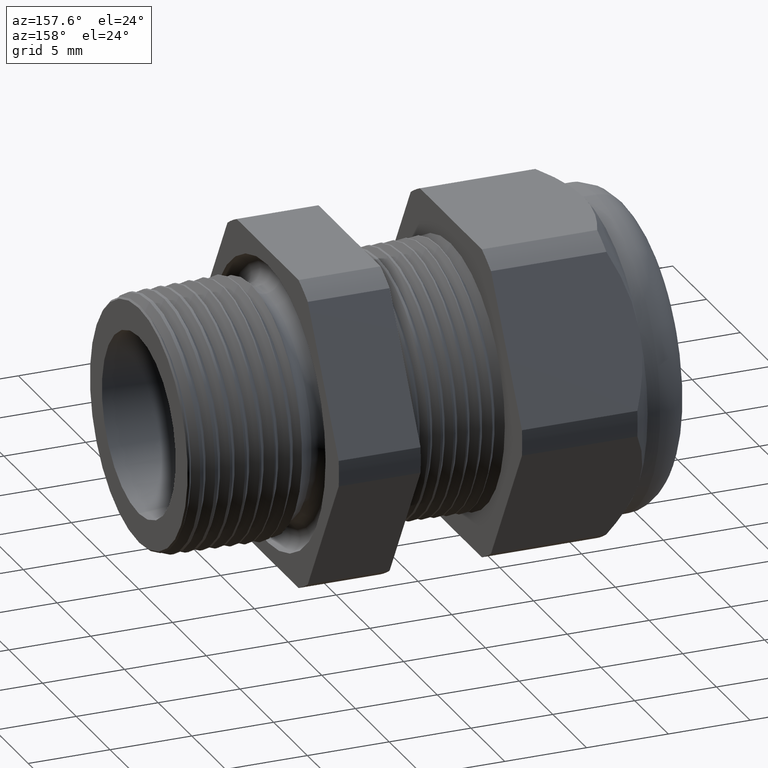
[diagram: clean part render]
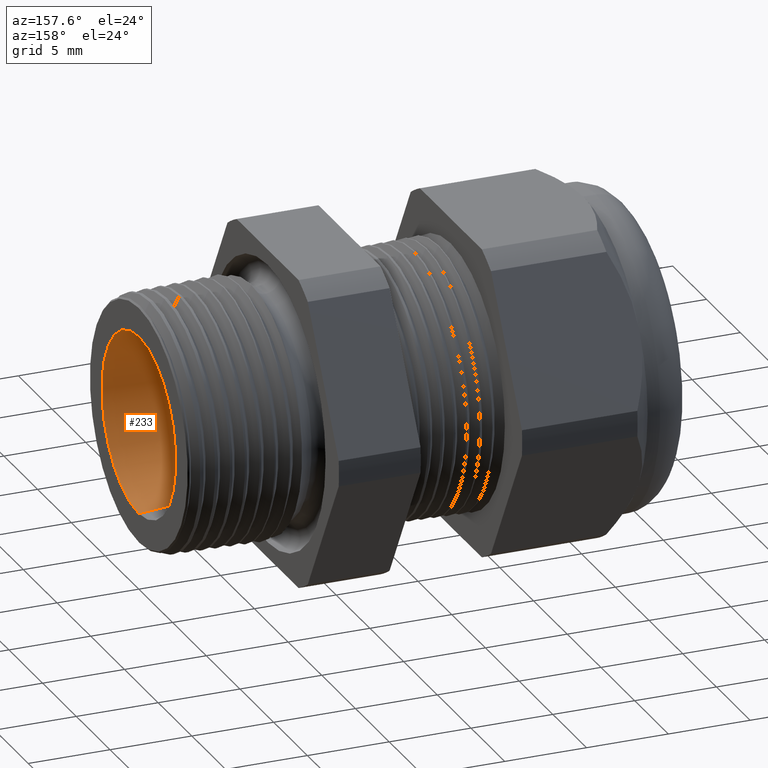
[diagram: same view with one face highlighted and labeled with its STEP entity id]
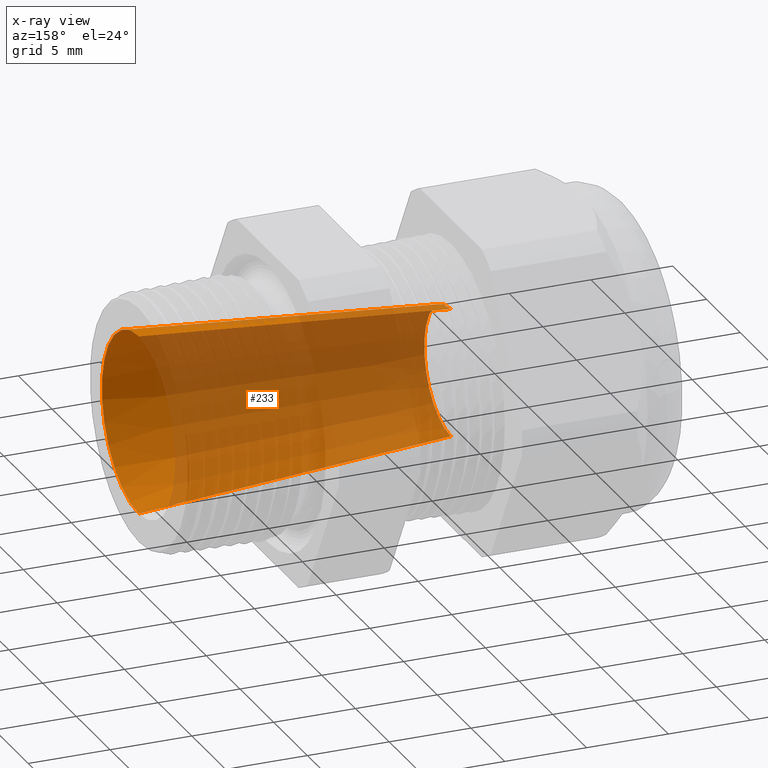
[diagram: x-ray of the same camera — body ghosted, the highlighted face saturated]
A machine part, auxiliary view. The second image highlights one B-rep face of the part: STEP entity #233.
The next image is the same camera in x-ray: the body ghosted, the highlighted face saturated — about 79% of this face is hidden behind the body in this view.
In plain terms, the highlighted conical surface has half-angle 4.594 deg.
Its self-contained STEP definition (entity closure, byte-faithful):
#162 = EDGE_CURVE ( 'NONE', #179, #241, #1604, .T. ) ;
#176 = VERTEX_POINT ( 'NONE', #1634 ) ;
#178 = EDGE_CURVE ( 'NONE', #176, #179, #1633, .T. ) ;
#179 = VERTEX_POINT ( 'NONE', #1628 ) ;
#233 = ADVANCED_FACE ( 'NONE', ( #1715 ), #1714, .F. ) ;
#234 = EDGE_LOOP ( 'NONE', ( #235, #236, #239, #242 ) ) ;
#235 = ORIENTED_EDGE ( 'NONE', *, *, #178, .F. ) ;
#236 = ORIENTED_EDGE ( 'NONE', *, *, #237, .T. ) ;
#237 = EDGE_CURVE ( 'NONE', #176, #238, #1769, .T. ) ;
#238 = VERTEX_POINT ( 'NONE', #1765 ) ;
#239 = ORIENTED_EDGE ( 'NONE', *, *, #240, .T. ) ;
#240 = EDGE_CURVE ( 'NONE', #238, #241, #1764, .T. ) ;
#241 = VERTEX_POINT ( 'NONE', #1759 ) ;
#242 = ORIENTED_EDGE ( 'NONE', *, *, #162, .F. ) ;
#1455 = DIRECTION ( 'NONE',  ( 1.000000000000000000, 0.0000000000000000000, 0.0000000000000000000 ) ) ;
#1601 = DIRECTION ( 'NONE',  ( 0.9967868727108976100, 0.0000000000000000000, -0.08009950306480641300 ) ) ;
#1602 = VECTOR ( 'NONE', #1601, 39.37007874015748900 ) ;
#1603 = CARTESIAN_POINT ( 'NONE',  ( -0.7508661417322833900, 0.0000000000000000000, -0.1550000000000000000 ) ) ;
#1604 = LINE ( 'NONE', #1603, #1602 ) ;
#1628 = CARTESIAN_POINT ( 'NONE',  ( -0.7508661417322833900, 0.0000000000000000000, -0.1550000000000000000 ) ) ;
#1629 = DIRECTION ( 'NONE',  ( 0.0000000000000000000, 0.0000000000000000000, -1.000000000000000000 ) ) ;
#1630 = DIRECTION ( 'NONE',  ( 1.000000000000000000, 0.0000000000000000000, 0.0000000000000000000 ) ) ;
#1631 = CARTESIAN_POINT ( 'NONE',  ( -0.7508661417322833900, 0.0000000000000000000, 0.0000000000000000000 ) ) ;
#1632 = AXIS2_PLACEMENT_3D ( 'NONE', #1631, #1630, #1629 ) ;
#1633 = CIRCLE ( 'NONE', #1632, 0.1550000000000000000 ) ;
#1634 = CARTESIAN_POINT ( 'NONE',  ( -0.7508661417322833900, 2.267665485113262000E-017, 0.1550000000000000000 ) ) ;
#1712 = CARTESIAN_POINT ( 'NONE',  ( -0.7508661417322833900, 0.0000000000000000000, 0.0000000000000000000 ) ) ;
#1713 = AXIS2_PLACEMENT_3D ( 'NONE', #1712, #1455, #1770 ) ;
#1714 = CONICAL_SURFACE ( 'NONE', #1713, 0.1550000000000000000, 0.08018540344487304300 ) ;
#1715 = FACE_OUTER_BOUND ( 'NONE', #234, .T. ) ;
#1759 = CARTESIAN_POINT ( 'NONE',  ( 0.0000000000000000000, 0.0000000000000000000, -0.2153378781036457400 ) ) ;
#1760 = DIRECTION ( 'NONE',  ( 0.0000000000000000000, 0.0000000000000000000, -1.000000000000000000 ) ) ;
#1761 = DIRECTION ( 'NONE',  ( 1.000000000000000000, 0.0000000000000000000, 0.0000000000000000000 ) ) ;
#1762 = CARTESIAN_POINT ( 'NONE',  ( 0.0000000000000000000, 0.0000000000000000000, 0.0000000000000000000 ) ) ;
#1763 = AXIS2_PLACEMENT_3D ( 'NONE', #1762, #1761, #1760 ) ;
#1764 = CIRCLE ( 'NONE', #1763, 0.2153378781036457400 ) ;
#1765 = CARTESIAN_POINT ( 'NONE',  ( 0.0000000000000000000, 2.637128431548127100E-017, 0.2153378781036457400 ) ) ;
#1766 = DIRECTION ( 'NONE',  ( 0.9967868727108976100, 9.809360004160878300E-018, 0.08009950306480641300 ) ) ;
#1767 = VECTOR ( 'NONE', #1766, 39.37007874015748900 ) ;
#1768 = CARTESIAN_POINT ( 'NONE',  ( -0.7508661417322833900, 1.898202538678397300E-017, 0.1550000000000000000 ) ) ;
#1769 = LINE ( 'NONE', #1768, #1767 ) ;
#1770 = DIRECTION ( 'NONE',  ( 0.0000000000000000000, 0.0000000000000000000, -1.000000000000000000 ) ) ;